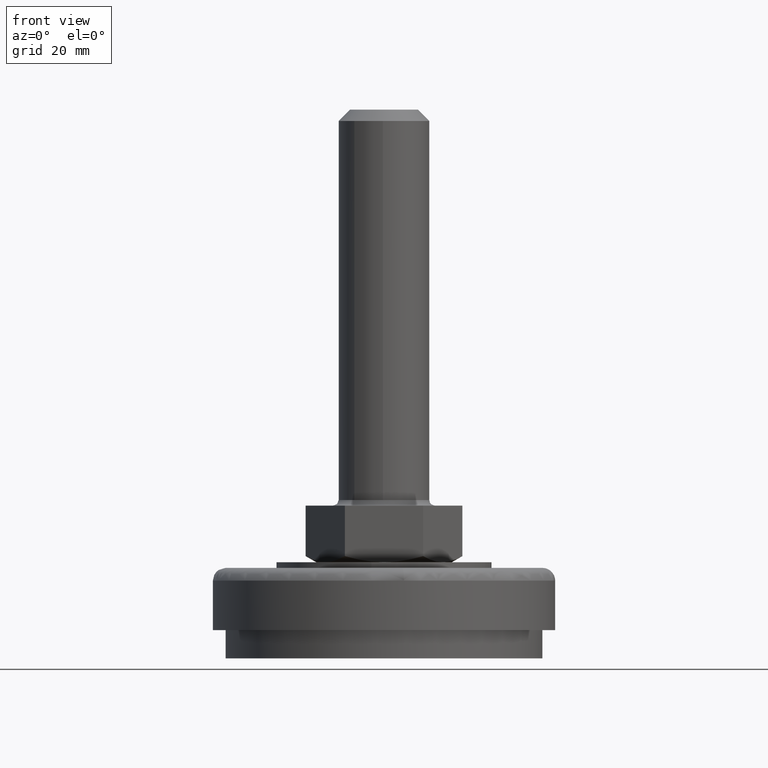
[diagram: clean part render]
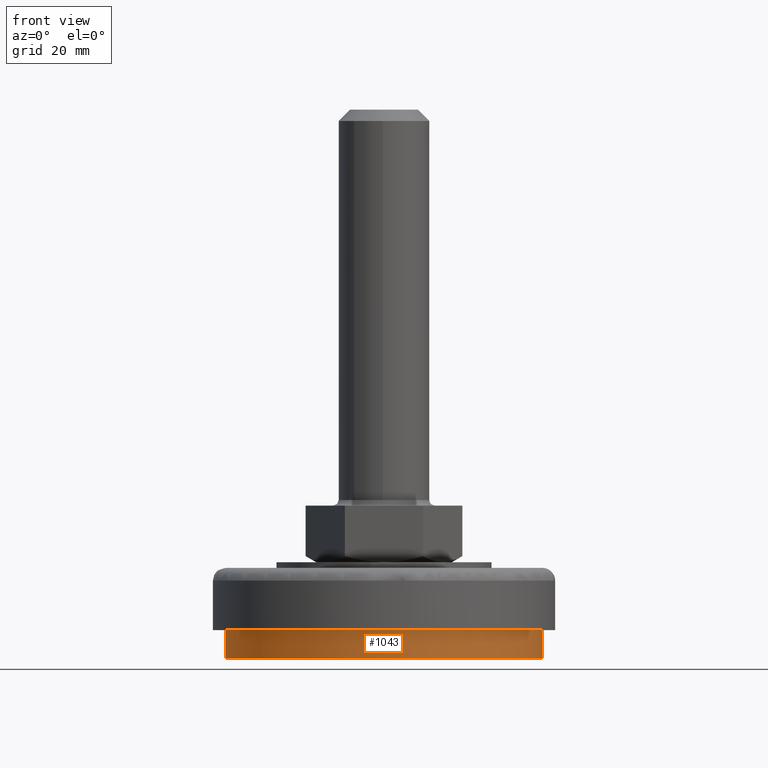
[diagram: same view with one face highlighted and labeled with its STEP entity id]
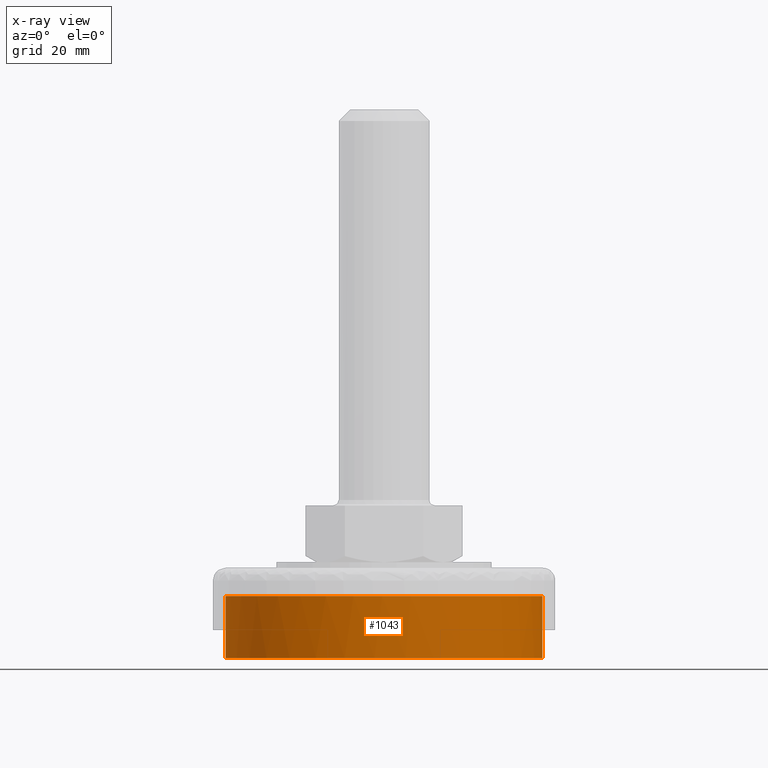
[diagram: x-ray of the same camera — body ghosted, the highlighted face saturated]
A machine part, front view. The second image highlights one B-rep face of the part: STEP entity #1043.
The next image is the same camera in x-ray: the body ghosted, the highlighted face saturated — about 0% of this face is hidden behind the body in this view.
In plain terms, the highlighted face is a freeform B-spline surface patch.
Its self-contained STEP definition (entity closure, byte-faithful):
#888=CARTESIAN_POINT('',(-19.309898797950034,20.276286849739694,-0.275000000009512));
#889=CARTESIAN_POINT('',(-28.104919807690997,11.900445312159436,-0.275000000009512));
#890=CARTESIAN_POINT('',(-27.998933845796788,-0.244342993954469,-0.275000000009512));
#891=CARTESIAN_POINT('',(-27.754590851842316,-28.243276839751257,-0.275000000009512));
#892=CARTESIAN_POINT('',(0.244342993954469,-27.998933845796788,-0.275000000009512));
#893=CARTESIAN_POINT('',(28.243276839751257,-27.754590851842316,-0.275000000009512));
#894=CARTESIAN_POINT('',(27.998933845796788,0.244342993954469,-0.275000000009512));
#895=CARTESIAN_POINT('',(27.754590851842316,28.243276839751257,-0.275000000009512));
#896=CARTESIAN_POINT('',(-0.244342993954469,27.998933845796788,-0.275000000009512));
#897=CARTESIAN_POINT('',(-19.309898797950034,20.276286849739694,11.281875000390221));
#898=CARTESIAN_POINT('',(-28.104919807690997,11.900445312159436,11.281875000390221));
#899=CARTESIAN_POINT('',(-27.998933845796788,-0.244342993954469,11.281875000390221));
#900=CARTESIAN_POINT('',(-27.754590851842316,-28.243276839751257,11.281875000390221));
#901=CARTESIAN_POINT('',(0.244342993954469,-27.998933845796788,11.281875000390221));
#902=CARTESIAN_POINT('',(28.243276839751257,-27.754590851842316,11.281875000390221));
#903=CARTESIAN_POINT('',(27.998933845796788,0.244342993954469,11.281875000390221));
#904=CARTESIAN_POINT('',(27.754590851842316,28.243276839751257,11.281875000390221));
#905=CARTESIAN_POINT('',(-0.244342993954469,27.998933845796788,11.281875000390221));
#913=(BOUNDED_SURFACE()B_SPLINE_SURFACE(2,1,((#888,#897),(#889,#898),(#890,#899),(#891,#900),(#892,#901),(#893,#902),(#894,#903),(#895,#904),(#896,#905)),.UNSPECIFIED.,.F.,.F.,.U.)B_SPLINE_SURFACE_WITH_KNOTS((3,2,2,2,3),(2,2),(0.0,24.123797872609050,70.515716858395677,116.907635844182290,163.299554829968910),(0.0,11.556875000399730),.UNSPECIFIED.)GEOMETRIC_REPRESENTATION_ITEM()RATIONAL_B_SPLINE_SURFACE(((0.853787705168325,0.853787705168325),(0.847695526217005,0.847695526217005),(1.0,1.0),(0.707106781186548,0.707106781186548),(1.0,1.0),(0.707106781186548,0.707106781186548),(1.0,1.0),(0.707106781186548,0.707106781186548),(1.0,1.0)))REPRESENTATION_ITEM('')SURFACE());
#914=CARTESIAN_POINT('',(-19.309898065484528,20.276287547295130,-1.321481E-014));
#915=VERTEX_POINT('',#914);
#916=CARTESIAN_POINT('',(-28.0,0.0,0.0));
#917=VERTEX_POINT('',#916);
#918=CARTESIAN_POINT('',(-19.309898065484546,20.276287547295151,0.0));
#919=CARTESIAN_POINT('',(-28.0,12.000365135820541,0.0));
#920=CARTESIAN_POINT('',(-28.0,0.0,0.0));
#928=(BOUNDED_CURVE()B_SPLINE_CURVE(2,(#918,#919,#920),.UNSPECIFIED.,.F.,.U.)B_SPLINE_CURVE_WITH_KNOTS((3,3),(0.871317018397969,1.0),.UNSPECIFIED.)CURVE()GEOMETRIC_REPRESENTATION_ITEM()RATIONAL_B_SPLINE_CURVE((0.853680523622142,0.849238509248275,1.0))REPRESENTATION_ITEM(''));
#929=EDGE_CURVE('',#915,#917,#928,.T.);
#930=ORIENTED_EDGE('',*,*,#929,.T.);
#931=CARTESIAN_POINT('',(28.0,0.0,0.0));
#932=VERTEX_POINT('',#931);
#933=CARTESIAN_POINT('',(-28.0,0.0,0.0));
#934=CARTESIAN_POINT('',(-28.000000000000004,-28.000000000000004,0.0));
#935=CARTESIAN_POINT('',(0.0,-28.0,0.0));
#936=CARTESIAN_POINT('',(28.000000000000004,-28.000000000000004,0.0));
#937=CARTESIAN_POINT('',(28.0,0.0,0.0));
#945=(BOUNDED_CURVE()B_SPLINE_CURVE(2,(#933,#934,#935,#936,#937),.UNSPECIFIED.,.F.,.U.)B_SPLINE_CURVE_WITH_KNOTS((3,2,3),(0.0,0.250000000000000,0.500000000000000),.UNSPECIFIED.)CURVE()GEOMETRIC_REPRESENTATION_ITEM()RATIONAL_B_SPLINE_CURVE((1.0,0.707106781186547,1.0,0.707106781186547,1.0))REPRESENTATION_ITEM(''));
#946=EDGE_CURVE('',#917,#932,#945,.T.);
#947=ORIENTED_EDGE('',*,*,#946,.T.);
#948=CARTESIAN_POINT('',(-0.244315367742546,27.998934086859830,2.036427E-013));
#949=VERTEX_POINT('',#948);
#950=CARTESIAN_POINT('',(28.0,0.0,0.0));
#951=CARTESIAN_POINT('',(28.000000000000004,28.000000000000004,0.0));
#952=CARTESIAN_POINT('',(0.0,28.0,0.0));
#953=CARTESIAN_POINT('',(-0.122160009084856,28.000000000000004,0.0));
#954=CARTESIAN_POINT('',(-0.244315367742546,27.998934086859826,2.036427E-013));
#962=(BOUNDED_CURVE()B_SPLINE_CURVE(2,(#950,#951,#952,#953,#954),.UNSPECIFIED.,.F.,.U.)B_SPLINE_CURVE_WITH_KNOTS((3,2,3),(0.500000000000000,0.750000000000000,0.751539720536988),.UNSPECIFIED.)CURVE()GEOMETRIC_REPRESENTATION_ITEM()RATIONAL_B_SPLINE_CURVE((1.0,0.707106781186547,1.0,0.998196105183394,0.996414430317953))REPRESENTATION_ITEM(''));
#963=EDGE_CURVE('',#932,#949,#962,.T.);
#964=ORIENTED_EDGE('',*,*,#963,.T.);
#965=CARTESIAN_POINT('',(-0.244315643870125,27.998934084450639,11.0));
#966=VERTEX_POINT('',#965);
#967=CARTESIAN_POINT('',(-0.244315367742546,27.998934086859830,2.036427E-013));
#968=CARTESIAN_POINT('',(-0.244315643870125,27.998934084450639,11.0));
#969=QUASI_UNIFORM_CURVE('',1,(#967,#968),.UNSPECIFIED.,.F.,.U.);
#970=EDGE_CURVE('',#949,#966,#969,.T.);
#971=ORIENTED_EDGE('',*,*,#970,.T.);
#972=CARTESIAN_POINT('',(27.999999999999989,2.394706E-016,11.000000000380471));
#973=VERTEX_POINT('',#972);
#974=CARTESIAN_POINT('',(-0.244315643870125,27.998934084450639,11.0));
#975=CARTESIAN_POINT('',(-0.122160147156527,27.999999999999996,10.999999999999998));
#976=CARTESIAN_POINT('',(0.0,28.0,11.0));
#977=CARTESIAN_POINT('',(28.000000000000004,28.000000000000004,11.0));
#978=CARTESIAN_POINT('',(27.999999999999989,2.394706E-016,11.000000000380471));
#986=(BOUNDED_CURVE()B_SPLINE_CURVE(2,(#974,#975,#976,#977,#978),.UNSPECIFIED.,.F.,.U.)B_SPLINE_CURVE_WITH_KNOTS((3,2,3),(0.248460277725878,0.250000000000000,0.500000000000000),.UNSPECIFIED.)CURVE()GEOMETRIC_REPRESENTATION_ITEM()RATIONAL_B_SPLINE_CURVE((0.996414426297733,0.998196103148215,1.0,0.707106781186547,1.0))REPRESENTATION_ITEM(''));
#987=EDGE_CURVE('',#966,#973,#986,.T.);
#988=ORIENTED_EDGE('',*,*,#987,.T.);
#989=CARTESIAN_POINT('',(9.892455066484615,-26.194261447072378,11.000000000379559));
#990=VERTEX_POINT('',#989);
#991=CARTESIAN_POINT('',(27.999999999999989,2.394706E-016,11.000000000380471));
#992=CARTESIAN_POINT('',(28.000000000000004,-19.355814217661891,10.999999999999998));
#993=CARTESIAN_POINT('',(9.892455066484615,-26.194261447072382,11.000000000379558));
#1001=(BOUNDED_CURVE()B_SPLINE_CURVE(2,(#991,#992,#993),.UNSPECIFIED.,.F.,.U.)B_SPLINE_CURVE_WITH_KNOTS((3,3),(0.500000000000000,0.689999999999979),.UNSPECIFIED.)CURVE()GEOMETRIC_REPRESENTATION_ITEM()RATIONAL_B_SPLINE_CURVE((1.0,0.777401153701801,0.893152553776827))REPRESENTATION_ITEM(''));
#1002=EDGE_CURVE('',#973,#990,#1001,.T.);
#1003=ORIENTED_EDGE('',*,*,#1002,.T.);
#1004=CARTESIAN_POINT('',(-28.0,0.0,11.0));
#1005=VERTEX_POINT('',#1004);
#1006=CARTESIAN_POINT('',(9.892455066484613,-26.194261447072378,11.000000000379558));
#1007=CARTESIAN_POINT('',(5.111034535125797,-27.999999999999996,10.999999999999996));
#1008=CARTESIAN_POINT('',(0.0,-28.0,11.0));
#1009=CARTESIAN_POINT('',(-28.000000000000004,-28.000000000000004,11.0));
#1010=CARTESIAN_POINT('',(-28.0,0.0,11.0));
#1018=(BOUNDED_CURVE()B_SPLINE_CURVE(2,(#1006,#1007,#1008,#1009,#1010),.UNSPECIFIED.,.F.,.U.)B_SPLINE_CURVE_WITH_KNOTS((3,2,3),(0.689999999999978,0.750000000000000,1.0),.UNSPECIFIED.)CURVE()GEOMETRIC_REPRESENTATION_ITEM()RATIONAL_B_SPLINE_CURVE((0.893152553776826,0.929705627484746,1.0,0.707106781186547,1.0))REPRESENTATION_ITEM(''));
#1019=EDGE_CURVE('',#990,#1005,#1018,.T.);
#1020=ORIENTED_EDGE('',*,*,#1019,.T.);
#1021=CARTESIAN_POINT('',(-19.309898023017620,20.276287587738022,11.0));
#1022=VERTEX_POINT('',#1021);
#1023=CARTESIAN_POINT('',(-28.0,0.0,11.0));
#1024=CARTESIAN_POINT('',(-28.000000000000007,12.000365170528267,11.0));
#1025=CARTESIAN_POINT('',(-19.309898023017642,20.276287587738040,10.999999999999998));
#1033=(BOUNDED_CURVE()B_SPLINE_CURVE(2,(#1023,#1024,#1025),.UNSPECIFIED.,.F.,.U.)B_SPLINE_CURVE_WITH_KNOTS((3,3),(0.0,0.128682981918101),.UNSPECIFIED.)CURVE()GEOMETRIC_REPRESENTATION_ITEM()RATIONAL_B_SPLINE_CURVE((1.0,0.849238508877977,0.853680523643963))REPRESENTATION_ITEM(''));
#1034=EDGE_CURVE('',#1005,#1022,#1033,.T.);
#1035=ORIENTED_EDGE('',*,*,#1034,.T.);
#1036=CARTESIAN_POINT('',(-19.309898065484528,20.276287547295130,-1.321481E-014));
#1037=CARTESIAN_POINT('',(-19.309898023017620,20.276287587738022,11.0));
#1038=QUASI_UNIFORM_CURVE('',1,(#1036,#1037),.UNSPECIFIED.,.F.,.U.);
#1039=EDGE_CURVE('',#915,#1022,#1038,.T.);
#1040=ORIENTED_EDGE('',*,*,#1039,.F.);
#1041=EDGE_LOOP('',(#930,#947,#964,#971,#988,#1003,#1020,#1035,#1040));
#1042=FACE_OUTER_BOUND('',#1041,.T.);
#1043=ADVANCED_FACE('',(#1042),#913,.T.);